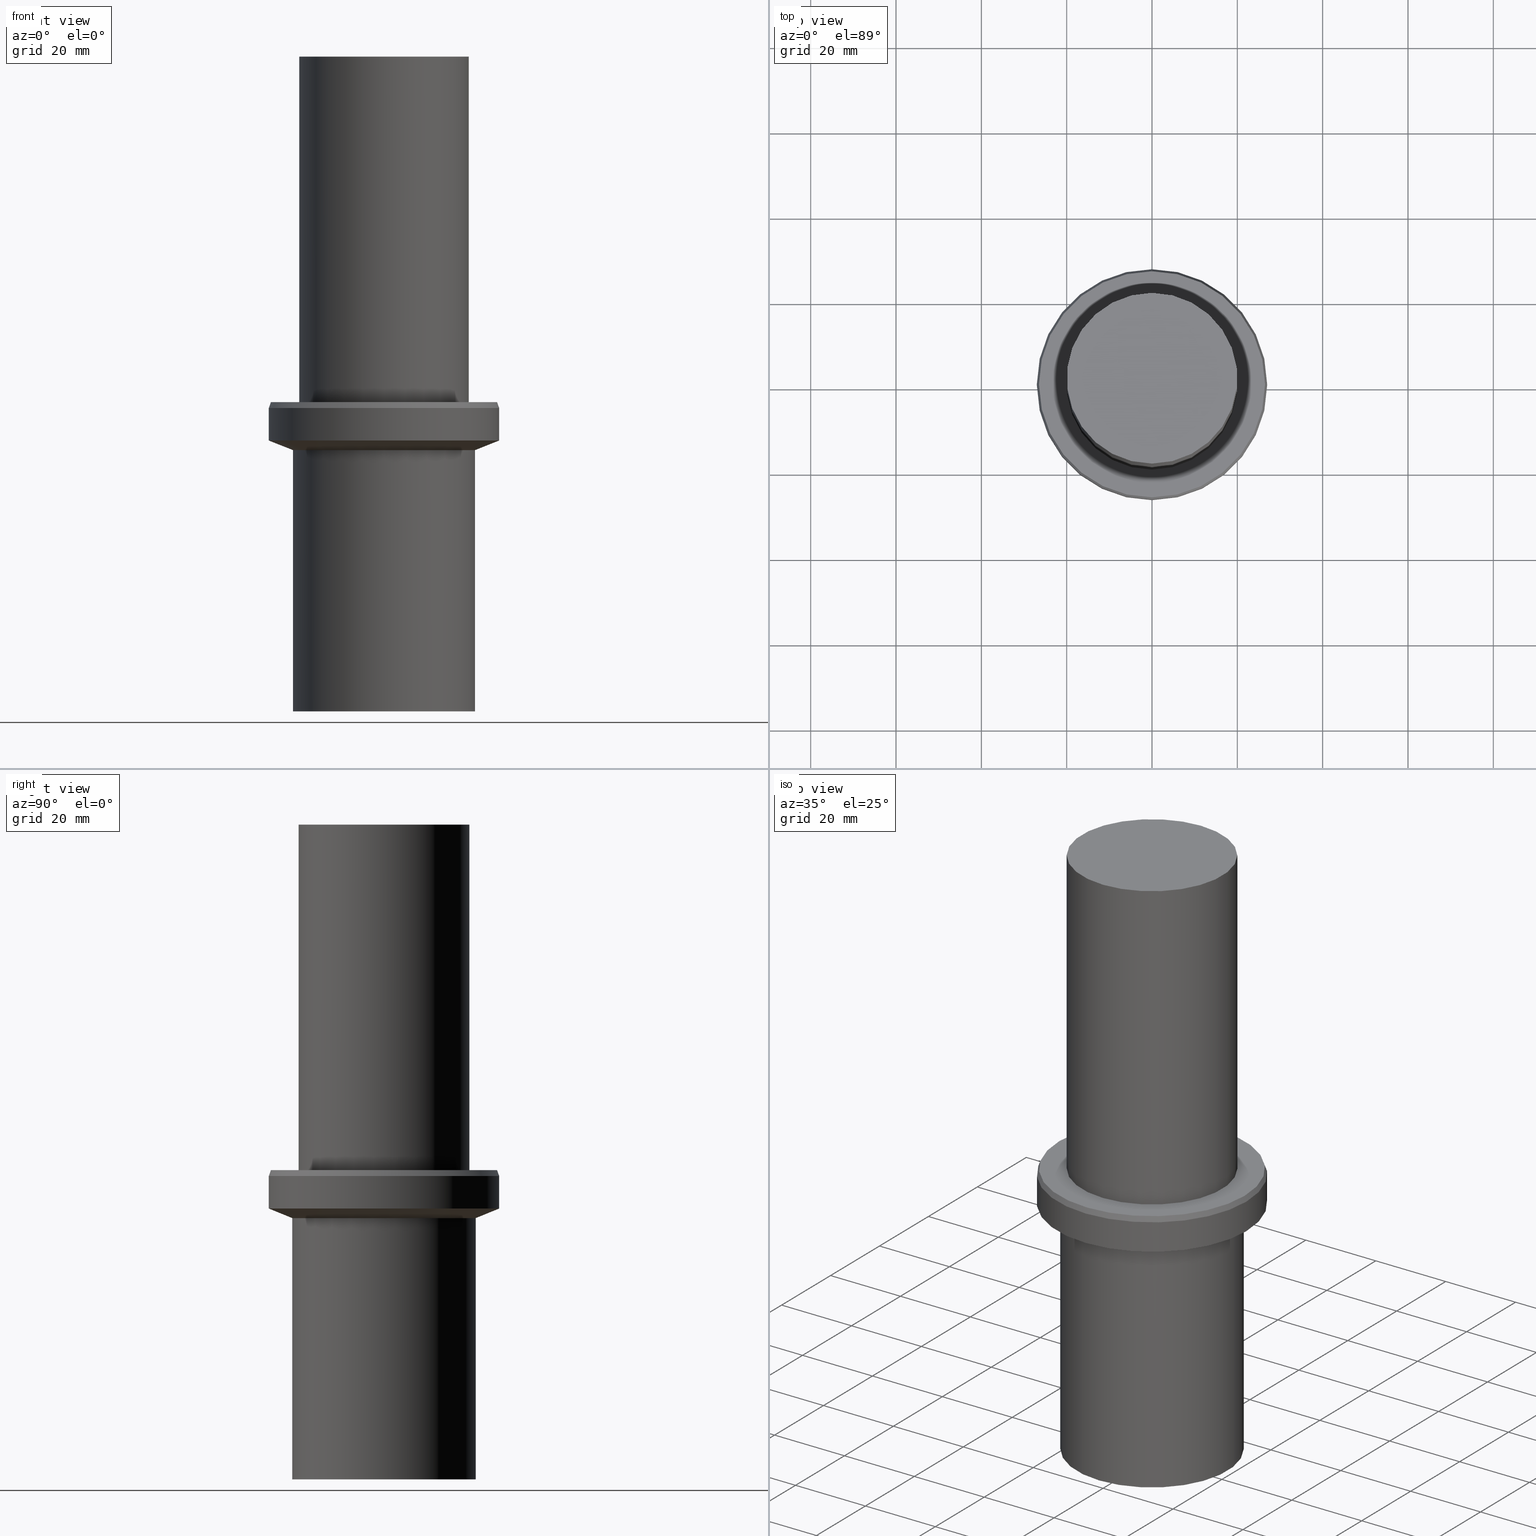
[diagram: canonical four-view strip — front | top / right | iso, engineering-drawing reading convention]
A machine part, canonical four-view strip (front | top / right | iso — engineering-drawing reading convention). The complete STEP part file that produces these views, byte-faithful:
ISO-10303-21;
HEADER;
FILE_DESCRIPTION((''),'1');
FILE_NAME('V:/02_3D_Field-HP\X2\FF71FF6FFF8CFF9F5916\X0\2013/02_Step_Field-HP\X2\FF71FF6FFF8CFF9F5916\X0\2013/31_\X2\30E130AC30B730F330AF30ED30BF30C330D430F330B030DB30EB30C0\X0\ MGT/MGT_ANSI_STEP/MGT36-AU1.1_8-2.5.stp','2018-02-02T01:28:20',(''),(''),'Spatial Interop R21 SP3','Kubotek KeyCreator 2011 V10.0.2 (22737)',' ');
FILE_SCHEMA(('automotive_design'));
ENDSEC;
DATA;
#1=MECHANICAL_DESIGN_GEOMETRIC_PRESENTATION_REPRESENTATION(' ',(#10,#11,#12,#13,#14,#15,#16,#17,#18,#19,#20,#21,#22,#23,#24,#25),#6);
#2=PRODUCT_DEFINITION_CONTEXT('',#26,'design');
#3=APPLICATION_PROTOCOL_DEFINITION('INTERNATIONAL STANDARD','automotive_design',1994,#26);
#4=PRODUCT_CATEGORY_RELATIONSHIP('NONE','NONE',#27,#28);
#5=SHAPE_DEFINITION_REPRESENTATION(#29,#30);
#6= (GEOMETRIC_REPRESENTATION_CONTEXT(3)GLOBAL_UNCERTAINTY_ASSIGNED_CONTEXT((#33))GLOBAL_UNIT_ASSIGNED_CONTEXT((#35,#36,#37))REPRESENTATION_CONTEXT('NONE','WORKSPACE'));
#10=STYLED_ITEM('',(#39,#40),#41);
#11=STYLED_ITEM('',(#42,#43),#44);
#12=STYLED_ITEM('',(#45),#46);
#13=STYLED_ITEM('',(#47),#48);
#14=STYLED_ITEM('',(#49),#50);
#15=STYLED_ITEM('',(#51,#52),#53);
#16=STYLED_ITEM('',(#54,#55),#56);
#17=STYLED_ITEM('',(#57,#58),#59);
#18=STYLED_ITEM('',(#60,#61),#62);
#19=STYLED_ITEM('',(#63,#64),#65);
#20=STYLED_ITEM('',(#66,#67),#68);
#21=STYLED_ITEM('',(#69),#70);
#22=STYLED_ITEM('',(#71),#72);
#23=STYLED_ITEM('',(#73,#74),#75);
#24=STYLED_ITEM('',(#76),#77);
#25=STYLED_ITEM('',(#78),#79);
#26=APPLICATION_CONTEXT(' ');
#27=PRODUCT_CATEGORY('part','NONE');
#28=PRODUCT_RELATED_PRODUCT_CATEGORY('detail',' ',(#80));
#29=PRODUCT_DEFINITION_SHAPE('NONE','NONE',#81);
#30=ADVANCED_BREP_SHAPE_REPRESENTATION('Unnamed[1]',(#41,#82),#6);
#33=UNCERTAINTY_MEASURE_WITH_UNIT(LENGTH_MEASURE(1.0E-006),#35,'','');
#35= (CONVERSION_BASED_UNIT('MILLIMETRE',#85)LENGTH_UNIT()NAMED_UNIT(#88));
#36= (NAMED_UNIT(#90)PLANE_ANGLE_UNIT()SI_UNIT($,.RADIAN.));
#37= (NAMED_UNIT(#90)SOLID_ANGLE_UNIT()SI_UNIT($,.STERADIAN.));
#39=PRESENTATION_STYLE_ASSIGNMENT((#96));
#40=PRESENTATION_STYLE_ASSIGNMENT((#97));
#41=MANIFOLD_SOLID_BREP('Unnamed[1]',#98);
#42=PRESENTATION_STYLE_ASSIGNMENT((#99));
#43=PRESENTATION_STYLE_ASSIGNMENT((#100));
#44=ADVANCED_FACE('Unnamed[1]',(#101),#102,.T.);
#45=PRESENTATION_STYLE_ASSIGNMENT((#103));
#46=EDGE_CURVE('Unnamed[1]',#104,#104,#105,.T.);
#47=PRESENTATION_STYLE_ASSIGNMENT((#106));
#48=EDGE_CURVE('Unnamed[1]',#107,#107,#108,.T.);
#49=PRESENTATION_STYLE_ASSIGNMENT((#109));
#50=EDGE_CURVE('Unnamed[1]',#110,#110,#111,.T.);
#51=PRESENTATION_STYLE_ASSIGNMENT((#112));
#52=PRESENTATION_STYLE_ASSIGNMENT((#113));
#53=ADVANCED_FACE('Unnamed[1]',(#114,#115),#116,.T.);
#54=PRESENTATION_STYLE_ASSIGNMENT((#117));
#55=PRESENTATION_STYLE_ASSIGNMENT((#118));
#56=ADVANCED_FACE('Unnamed[1]',(#119,#120),#121,.T.);
#57=PRESENTATION_STYLE_ASSIGNMENT((#122));
#58=PRESENTATION_STYLE_ASSIGNMENT((#123));
#59=ADVANCED_FACE('Unnamed[1]',(#124,#125),#126,.T.);
#60=PRESENTATION_STYLE_ASSIGNMENT((#127));
#61=PRESENTATION_STYLE_ASSIGNMENT((#128));
#62=ADVANCED_FACE('Unnamed[1]',(#129,#130),#131,.T.);
#63=PRESENTATION_STYLE_ASSIGNMENT((#132));
#64=PRESENTATION_STYLE_ASSIGNMENT((#133));
#65=ADVANCED_FACE('Unnamed[1]',(#134,#135),#136,.T.);
#66=PRESENTATION_STYLE_ASSIGNMENT((#137));
#67=PRESENTATION_STYLE_ASSIGNMENT((#138));
#68=ADVANCED_FACE('Unnamed[1]',(#139,#140),#141,.T.);
#69=PRESENTATION_STYLE_ASSIGNMENT((#142));
#70=EDGE_CURVE('Unnamed[1]',#143,#143,#144,.T.);
#71=PRESENTATION_STYLE_ASSIGNMENT((#145));
#72=EDGE_CURVE('Unnamed[1]',#146,#146,#147,.T.);
#73=PRESENTATION_STYLE_ASSIGNMENT((#148));
#74=PRESENTATION_STYLE_ASSIGNMENT((#149));
#75=ADVANCED_FACE('Unnamed[1]',(#150),#151,.T.);
#76=PRESENTATION_STYLE_ASSIGNMENT((#152));
#77=EDGE_CURVE('Unnamed[1]',#153,#153,#154,.T.);
#78=PRESENTATION_STYLE_ASSIGNMENT((#155));
#79=EDGE_CURVE('Unnamed[1]',#156,#156,#157,.T.);
#80=PRODUCT('Unnamed[1]','Unnamed[1]','PART-Unnamed[1]-DESC',(#158));
#81=PRODUCT_DEFINITION('NONE','NONE',#159,#2);
#82=AXIS2_PLACEMENT_3D('',#160,#161,#162);
#85=LENGTH_MEASURE_WITH_UNIT(LENGTH_MEASURE(1.0),#163);
#88=DIMENSIONAL_EXPONENTS(1.0,0.0,0.0,0.0,0.0,0.0,0.0);
#90=DIMENSIONAL_EXPONENTS(0.0,0.0,0.0,0.0,0.0,0.0,0.0);
#96=SURFACE_STYLE_USAGE(.BOTH.,#164);
#97=CURVE_STYLE('',#165,POSITIVE_LENGTH_MEASURE(1000.0),#166);
#98=CLOSED_SHELL('',(#75,#62,#65,#68,#56,#59,#53,#44));
#99=SURFACE_STYLE_USAGE(.BOTH.,#167);
#100=CURVE_STYLE('',#168,POSITIVE_LENGTH_MEASURE(1000.0),#169);
#101=FACE_OUTER_BOUND('',#170,.T.);
#102=PLANE('',#171);
#103=CURVE_STYLE('',#172,POSITIVE_LENGTH_MEASURE(1000.0),#173);
#104=VERTEX_POINT('',#174);
#105=CIRCLE('',#175,26.9999999999945);
#106=CURVE_STYLE('',#176,POSITIVE_LENGTH_MEASURE(1000.0),#177);
#107=VERTEX_POINT('',#178);
#108=CIRCLE('',#179,26.9999999999945);
#109=CURVE_STYLE('',#180,POSITIVE_LENGTH_MEASURE(1000.0),#181);
#110=VERTEX_POINT('',#182);
#111=CIRCLE('',#183,21.4999999999993);
#112=SURFACE_STYLE_USAGE(.BOTH.,#184);
#113=CURVE_STYLE('',#185,POSITIVE_LENGTH_MEASURE(1000.0),#186);
#114=FACE_BOUND('',#187,.T.);
#115=FACE_BOUND('',#188,.T.);
#116=CYLINDRICAL_SURFACE('',#189,21.4999999999997);
#117=SURFACE_STYLE_USAGE(.BOTH.,#190);
#118=CURVE_STYLE('',#191,POSITIVE_LENGTH_MEASURE(1000.0),#192);
#119=FACE_BOUND('',#193,.T.);
#120=FACE_BOUND('',#194,.T.);
#121=CYLINDRICAL_SURFACE('',#195,26.9999999999945);
#122=SURFACE_STYLE_USAGE(.BOTH.,#196);
#123=CURVE_STYLE('',#197,POSITIVE_LENGTH_MEASURE(1000.0),#198);
#124=FACE_BOUND('',#199,.T.);
#125=FACE_BOUND('',#200,.T.);
#126=CONICAL_SURFACE('',#201,24.2499999999973,1.18387276800933);
#127=SURFACE_STYLE_USAGE(.BOTH.,#202);
#128=CURVE_STYLE('',#203,POSITIVE_LENGTH_MEASURE(1000.0),#204);
#129=FACE_BOUND('',#205,.T.);
#130=FACE_BOUND('',#206,.T.);
#131=CYLINDRICAL_SURFACE('',#207,20.0000000000027);
#132=SURFACE_STYLE_USAGE(.BOTH.,#208);
#133=CURVE_STYLE('',#209,POSITIVE_LENGTH_MEASURE(1000.0),#210);
#134=FACE_OUTER_BOUND('',#211,.T.);
#135=FACE_BOUND('',#212,.T.);
#136=PLANE('',#213);
#137=SURFACE_STYLE_USAGE(.BOTH.,#214);
#138=CURVE_STYLE('',#215,POSITIVE_LENGTH_MEASURE(1000.0),#216);
#139=FACE_BOUND('',#217,.T.);
#140=FACE_BOUND('',#218,.T.);
#141=CONICAL_SURFACE('',#219,26.7499999999955,0.349065850398426);
#142=CURVE_STYLE('',#220,POSITIVE_LENGTH_MEASURE(1000.0),#221);
#143=VERTEX_POINT('',#222);
#144=CIRCLE('',#223,20.0000000000027);
#145=CURVE_STYLE('',#224,POSITIVE_LENGTH_MEASURE(1000.0),#225);
#146=VERTEX_POINT('',#226);
#147=CIRCLE('',#227,26.4999999999965);
#148=SURFACE_STYLE_USAGE(.BOTH.,#228);
#149=CURVE_STYLE('',#229,POSITIVE_LENGTH_MEASURE(1000.0),#230);
#150=FACE_OUTER_BOUND('',#231,.T.);
#151=PLANE('',#232);
#152=CURVE_STYLE('',#233,POSITIVE_LENGTH_MEASURE(1000.0),#234);
#153=VERTEX_POINT('',#235);
#154=CIRCLE('',#236,21.5000000000001);
#155=CURVE_STYLE('',#237,POSITIVE_LENGTH_MEASURE(1000.0),#238);
#156=VERTEX_POINT('',#239);
#157=CIRCLE('',#240,20.0000000000027);
#158=PRODUCT_CONTEXT('',#26,'mechanical');
#159=PRODUCT_DEFINITION_FORMATION_WITH_SPECIFIED_SOURCE(' ','NONE',#80,.NOT_KNOWN.);
#160=CARTESIAN_POINT('',(0.0,0.0,0.0));
#161=DIRECTION('',(0.0,0.0,1.0));
#162=DIRECTION('',(1.0,0.0,0.0));
#163= (NAMED_UNIT(#88)LENGTH_UNIT()SI_UNIT(.MILLI.,.METRE.));
#164=SURFACE_SIDE_STYLE('',(#242));
#165=DRAUGHTING_PRE_DEFINED_CURVE_FONT('continuous');
#166=COLOUR_RGB('',0.0,1.0,0.0);
#167=SURFACE_SIDE_STYLE('',(#243));
#168=DRAUGHTING_PRE_DEFINED_CURVE_FONT('continuous');
#169=COLOUR_RGB('',0.0,1.0,0.0);
#170=EDGE_LOOP('',(#244));
#171=AXIS2_PLACEMENT_3D('',#245,#246,#247);
#172=DRAUGHTING_PRE_DEFINED_CURVE_FONT('continuous');
#173=COLOUR_RGB('',0.0,1.0,0.0);
#174=CARTESIAN_POINT('',(-4.35522741122329E-015,26.9999999999945,71.126261290285));
#175=AXIS2_PLACEMENT_3D('',#248,#249,#250);
#176=DRAUGHTING_PRE_DEFINED_CURVE_FONT('continuous');
#177=COLOUR_RGB('',0.0,1.0,0.0);
#178=CARTESIAN_POINT('',(-3.88825358729318E-015,26.9999999999945,63.5000000000055));
#179=AXIS2_PLACEMENT_3D('',#251,#252,#253);
#180=DRAUGHTING_PRE_DEFINED_CURVE_FONT('continuous');
#181=COLOUR_RGB('',0.0,1.0,0.0);
#182=CARTESIAN_POINT('',(0.0,21.4999999999993,0.0));
#183=AXIS2_PLACEMENT_3D('',#254,#255,#256);
#184=SURFACE_SIDE_STYLE('',(#257));
#185=DRAUGHTING_PRE_DEFINED_CURVE_FONT('continuous');
#186=COLOUR_RGB('',0.0,1.0,0.0);
#187=EDGE_LOOP('',(#258));
#188=EDGE_LOOP('',(#259));
#189=AXIS2_PLACEMENT_3D('',#260,#261,#262);
#190=SURFACE_SIDE_STYLE('',(#263));
#191=DRAUGHTING_PRE_DEFINED_CURVE_FONT('continuous');
#192=COLOUR_RGB('',0.0,1.0,0.0);
#193=EDGE_LOOP('',(#264));
#194=EDGE_LOOP('',(#265));
#195=AXIS2_PLACEMENT_3D('',#266,#267,#268);
#196=SURFACE_SIDE_STYLE('',(#269));
#197=DRAUGHTING_PRE_DEFINED_CURVE_FONT('continuous');
#198=COLOUR_RGB('',0.0,1.0,0.0);
#199=EDGE_LOOP('',(#270));
#200=EDGE_LOOP('',(#271));
#201=AXIS2_PLACEMENT_3D('',#272,#273,#274);
#202=SURFACE_SIDE_STYLE('',(#275));
#203=DRAUGHTING_PRE_DEFINED_CURVE_FONT('continuous');
#204=COLOUR_RGB('',0.0,1.0,0.0);
#205=EDGE_LOOP('',(#276));
#206=EDGE_LOOP('',(#277));
#207=AXIS2_PLACEMENT_3D('',#278,#279,#280);
#208=SURFACE_SIDE_STYLE('',(#281));
#209=DRAUGHTING_PRE_DEFINED_CURVE_FONT('continuous');
#210=COLOUR_RGB('',0.0,1.0,0.0);
#211=EDGE_LOOP('',(#282));
#212=EDGE_LOOP('',(#283));
#213=AXIS2_PLACEMENT_3D('',#284,#285,#286);
#214=SURFACE_SIDE_STYLE('',(#287));
#215=DRAUGHTING_PRE_DEFINED_CURVE_FONT('continuous');
#216=COLOUR_RGB('',0.0,1.0,0.0);
#217=EDGE_LOOP('',(#288));
#218=EDGE_LOOP('',(#289));
#219=AXIS2_PLACEMENT_3D('',#290,#291,#292);
#220=DRAUGHTING_PRE_DEFINED_CURVE_FONT('continuous');
#221=COLOUR_RGB('',0.0,1.0,0.0);
#222=CARTESIAN_POINT('',(-9.39916418345641E-015,20.0000000000027,153.500000000008));
#223=AXIS2_PLACEMENT_3D('',#293,#294,#295);
#224=DRAUGHTING_PRE_DEFINED_CURVE_FONT('continuous');
#225=COLOUR_RGB('',0.0,1.0,0.0);
#226=CARTESIAN_POINT('',(-4.43934464690969E-015,26.4999999999965,72.5000000000087));
#227=AXIS2_PLACEMENT_3D('',#296,#297,#298);
#228=SURFACE_SIDE_STYLE('',(#299));
#229=DRAUGHTING_PRE_DEFINED_CURVE_FONT('continuous');
#230=COLOUR_RGB('',0.0,1.0,0.0);
#231=EDGE_LOOP('',(#300));
#232=AXIS2_PLACEMENT_3D('',#301,#302,#303);
#233=DRAUGHTING_PRE_DEFINED_CURVE_FONT('continuous');
#234=COLOUR_RGB('',0.0,1.0,0.0);
#235=CARTESIAN_POINT('',(-3.75102900207456E-015,21.5000000000001,61.2589524536573));
#236=AXIS2_PLACEMENT_3D('',#304,#305,#306);
#237=DRAUGHTING_PRE_DEFINED_CURVE_FONT('continuous');
#238=COLOUR_RGB('',0.0,1.0,0.0);
#239=CARTESIAN_POINT('',(-4.43934464690969E-015,20.0000000000027,72.5000000000087));
#240=AXIS2_PLACEMENT_3D('',#307,#308,#309);
#242=SURFACE_STYLE_FILL_AREA(#310);
#243=SURFACE_STYLE_FILL_AREA(#311);
#244=ORIENTED_EDGE('',*,*,#50,.T.);
#245=CARTESIAN_POINT('',(-1.75127120959065E-028,10.7499999999997,2.8563817977556E-012));
#246=DIRECTION('',(6.12323399573677E-017,-2.6591795498841E-013,-1.0));
#247=DIRECTION('',(1.62779514678876E-029,1.0,-2.6591795498841E-013));
#248=CARTESIAN_POINT('',(-4.35522741122329E-015,-8.71045482244658E-015,71.126261290285));
#249=DIRECTION('',(6.12323399573677E-017,1.22464679914748E-016,-1.0));
#250=DIRECTION('',(-1.23259516440775E-032,1.0,1.22464679914748E-016));
#251=CARTESIAN_POINT('',(-3.88825358729318E-015,-7.77650717458636E-015,63.5000000000055));
#252=DIRECTION('',(6.12323399573677E-017,1.22464679914748E-016,-1.0));
#253=DIRECTION('',(-1.23259516440775E-032,1.0,1.22464679914748E-016));
#254=CARTESIAN_POINT('',(0.0,0.0,0.0));
#255=DIRECTION('',(6.12323399573676E-017,1.22464679914722E-016,-1.0));
#256=DIRECTION('',(-1.23259516440787E-032,1.0,1.22464679914722E-016));
#257=SURFACE_STYLE_FILL_AREA(#312);
#258=ORIENTED_EDGE('',*,*,#50,.F.);
#259=ORIENTED_EDGE('',*,*,#77,.T.);
#260=CARTESIAN_POINT('',(-1.87551450103728E-015,-3.75102900207456E-015,30.6294762268286));
#261=DIRECTION('',(6.12323399573677E-017,1.2246467991472E-016,-1.0));
#262=DIRECTION('',(-1.23259516440785E-032,1.0,1.2246467991472E-016));
#263=SURFACE_STYLE_FILL_AREA(#313);
#264=ORIENTED_EDGE('',*,*,#48,.F.);
#265=ORIENTED_EDGE('',*,*,#46,.T.);
#266=CARTESIAN_POINT('',(-4.12174049925824E-015,-8.24348099851647E-015,67.3131306451452));
#267=DIRECTION('',(6.12323399573677E-017,1.22464679914748E-016,-1.0));
#268=DIRECTION('',(-1.23259516440775E-032,1.0,1.22464679914748E-016));
#269=SURFACE_STYLE_FILL_AREA(#314);
#270=ORIENTED_EDGE('',*,*,#77,.F.);
#271=ORIENTED_EDGE('',*,*,#48,.T.);
#272=CARTESIAN_POINT('',(-3.81964129468387E-015,-7.63928258936774E-015,62.3794762268314));
#273=DIRECTION('',(-6.12323399573677E-017,-1.22464679914734E-016,1.0));
#274=DIRECTION('',(-1.23259516440778E-032,1.0,1.22464679914734E-016));
#275=SURFACE_STYLE_FILL_AREA(#315);
#276=ORIENTED_EDGE('',*,*,#79,.F.);
#277=ORIENTED_EDGE('',*,*,#70,.T.);
#278=CARTESIAN_POINT('',(-6.91925441518305E-015,-1.38385088303661E-014,113.000000000008));
#279=DIRECTION('',(6.12323399573677E-017,1.22464679914744E-016,-1.0));
#280=DIRECTION('',(-1.23259516440789E-032,1.0,1.22464679914744E-016));
#281=SURFACE_STYLE_FILL_AREA(#316);
#282=ORIENTED_EDGE('',*,*,#72,.F.);
#283=ORIENTED_EDGE('',*,*,#79,.T.);
#284=CARTESIAN_POINT('',(-4.43934464690969E-015,23.2499999999996,72.5000000000087));
#285=DIRECTION('',(-6.12323399573677E-017,-2.03546435311683E-015,1.0));
#286=DIRECTION('',(1.29463397971922E-031,-1.0,-2.03546435311683E-015));
#287=SURFACE_STYLE_FILL_AREA(#317);
#288=ORIENTED_EDGE('',*,*,#46,.F.);
#289=ORIENTED_EDGE('',*,*,#72,.T.);
#290=CARTESIAN_POINT('',(-4.39728602906649E-015,-8.79457205813298E-015,71.8131306451468));
#291=DIRECTION('',(6.12323399573677E-017,1.22464679914749E-016,-1.0));
#292=DIRECTION('',(-1.2325951644077E-032,1.0,1.22464679914749E-016));
#293=CARTESIAN_POINT('',(-9.39916418345641E-015,-1.87983283669128E-014,153.500000000008));
#294=DIRECTION('',(6.12323399573677E-017,1.22464679914744E-016,-1.0));
#295=DIRECTION('',(-1.23259516440789E-032,1.0,1.22464679914744E-016));
#296=CARTESIAN_POINT('',(-4.43934464690969E-015,-8.87868929381937E-015,72.5000000000087));
#297=DIRECTION('',(6.12323399573676E-017,1.2246467991475E-016,-1.0));
#298=DIRECTION('',(-1.23259516440799E-032,1.0,1.2246467991475E-016));
#299=SURFACE_STYLE_FILL_AREA(#318);
#300=ORIENTED_EDGE('',*,*,#70,.F.);
#301=CARTESIAN_POINT('',(-9.39916418345644E-015,10.0000000000013,153.500000000008));
#302=DIRECTION('',(-6.12323399573677E-017,4.81944413517655E-014,1.0));
#303=DIRECTION('',(-2.94623126417595E-030,-1.0,4.81944413517655E-014));
#304=CARTESIAN_POINT('',(-3.75102900207456E-015,-7.50205800414912E-015,61.2589524536573));
#305=DIRECTION('',(6.12323399573677E-017,1.22464679914718E-016,-1.0));
#306=DIRECTION('',(-1.23259516440782E-032,1.0,1.22464679914718E-016));
#307=CARTESIAN_POINT('',(-4.43934464690969E-015,-8.87868929381937E-015,72.5000000000087));
#308=DIRECTION('',(6.12323399573677E-017,1.22464679914744E-016,-1.0));
#309=DIRECTION('',(-1.23259516440789E-032,1.0,1.22464679914744E-016));
#310=FILL_AREA_STYLE('',(#319));
#311=FILL_AREA_STYLE('',(#320));
#312=FILL_AREA_STYLE('',(#321));
#313=FILL_AREA_STYLE('',(#322));
#314=FILL_AREA_STYLE('',(#323));
#315=FILL_AREA_STYLE('',(#324));
#316=FILL_AREA_STYLE('',(#325));
#317=FILL_AREA_STYLE('',(#326));
#318=FILL_AREA_STYLE('',(#327));
#319=FILL_AREA_STYLE_COLOUR('',#328);
#320=FILL_AREA_STYLE_COLOUR('',#329);
#321=FILL_AREA_STYLE_COLOUR('',#330);
#322=FILL_AREA_STYLE_COLOUR('',#331);
#323=FILL_AREA_STYLE_COLOUR('',#332);
#324=FILL_AREA_STYLE_COLOUR('',#333);
#325=FILL_AREA_STYLE_COLOUR('',#334);
#326=FILL_AREA_STYLE_COLOUR('',#335);
#327=FILL_AREA_STYLE_COLOUR('',#336);
#328=COLOUR_RGB('',0.0,1.0,0.0);
#329=COLOUR_RGB('',0.0,1.0,0.0);
#330=COLOUR_RGB('',0.0,1.0,0.0);
#331=COLOUR_RGB('',0.0,1.0,0.0);
#332=COLOUR_RGB('',0.0,1.0,0.0);
#333=COLOUR_RGB('',0.0,1.0,0.0);
#334=COLOUR_RGB('',0.0,1.0,0.0);
#335=COLOUR_RGB('',0.0,1.0,0.0);
#336=COLOUR_RGB('',0.0,1.0,0.0);
ENDSEC;
END-ISO-10303-21;
